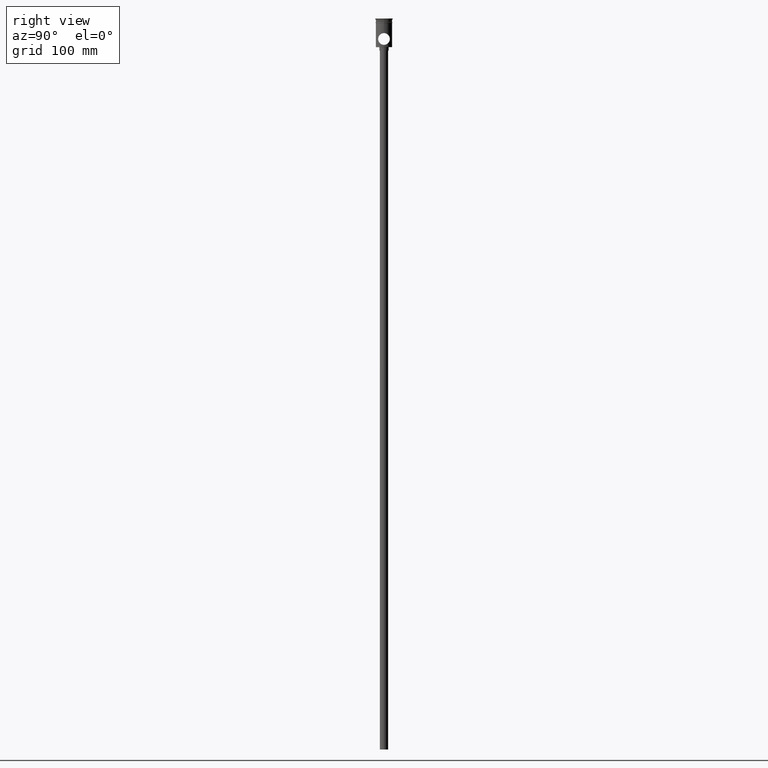
[diagram: clean part render]
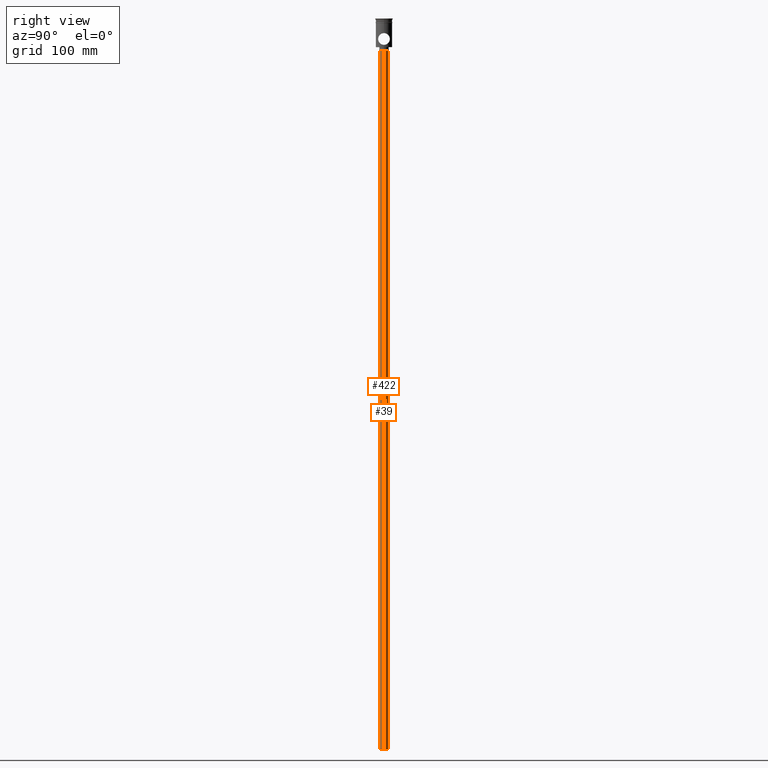
[diagram: same view with one multi-face feature highlighted, each face labeled with its STEP entity id]
A machine part, right view. The highlighted faces form ONE feature: a constant-radius fillet chain: 2 tangent blend faces with common blend radius 3.5 mm. The faces share edges in the B-rep.
Their STEP definitions:
[1] entity #422 (Cylinder):
#11 = LINE ( 'NONE', #357, #736 ) ;
#175 = CARTESIAN_POINT ( 'NONE',  ( 0.000000000000000000, 0.000000000000000000, -624.5000000000000000 ) ) ;
#277 = CYLINDRICAL_SURFACE ( 'NONE', #421, 3.500000000000000444 ) ;
#297 = VERTEX_POINT ( 'NONE', #910 ) ;
#357 = CARTESIAN_POINT ( 'NONE',  ( -3.500000000000000444, 4.286263797015737088E-16, -624.5000000000000000 ) ) ;
#383 = EDGE_CURVE ( 'NONE', #972, #943, #1089, .T. ) ;
#421 = AXIS2_PLACEMENT_3D ( 'NONE', #741, #1075, #1190 ) ;
#422 = ADVANCED_FACE ( 'NONE', ( #1305 ), #277, .T. ) ;
#427 = CARTESIAN_POINT ( 'NONE',  ( 3.500000000000000444, 0.000000000000000000, -27.50000000000000000 ) ) ;
#468 = EDGE_CURVE ( 'NONE', #297, #1492, #11, .T. ) ;
#507 = ORIENTED_EDGE ( 'NONE', *, *, #587, .F. ) ;
#509 = CARTESIAN_POINT ( 'NONE',  ( 3.500000000000000444, 0.000000000000000000, -624.5000000000000000 ) ) ;
#549 = CARTESIAN_POINT ( 'NONE',  ( 3.500000000000000444, 0.000000000000000000, -624.5000000000000000 ) ) ;
#587 = EDGE_CURVE ( 'NONE', #972, #297, #897, .T. ) ;
#607 = DIRECTION ( 'NONE',  ( 0.000000000000000000, 0.000000000000000000, -1.000000000000000000 ) ) ;
#612 = DIRECTION ( 'NONE',  ( -0.000000000000000000, -0.000000000000000000, 1.000000000000000000 ) ) ;
#627 = DIRECTION ( 'NONE',  ( 0.000000000000000000, 0.000000000000000000, -1.000000000000000000 ) ) ;
#690 = EDGE_CURVE ( 'NONE', #943, #1492, #856, .T. ) ;
#736 = VECTOR ( 'NONE', #612, 1000.000000000000000 ) ;
#741 = CARTESIAN_POINT ( 'NONE',  ( 0.000000000000000000, 0.000000000000000000, -624.5000000000000000 ) ) ;
#807 = AXIS2_PLACEMENT_3D ( 'NONE', #175, #627, #1325 ) ;
#856 = CIRCLE ( 'NONE', #1234, 3.500000000000000444 ) ;
#897 = CIRCLE ( 'NONE', #807, 3.500000000000000444 ) ;
#910 = CARTESIAN_POINT ( 'NONE',  ( -3.500000000000000444, 4.286263797015737088E-16, -624.5000000000000000 ) ) ;
#943 = VERTEX_POINT ( 'NONE', #427 ) ;
#972 = VERTEX_POINT ( 'NONE', #549 ) ;
#1067 = DIRECTION ( 'NONE',  ( -1.000000000000000000, 0.000000000000000000, 0.000000000000000000 ) ) ;
#1072 = ORIENTED_EDGE ( 'NONE', *, *, #690, .T. ) ;
#1075 = DIRECTION ( 'NONE',  ( -0.000000000000000000, -0.000000000000000000, 1.000000000000000000 ) ) ;
#1089 = LINE ( 'NONE', #509, #1117 ) ;
#1117 = VECTOR ( 'NONE', #1421, 1000.000000000000000 ) ;
#1118 = CARTESIAN_POINT ( 'NONE',  ( -3.500000000000000444, 4.286263797015737088E-16, -27.50000000000000000 ) ) ;
#1190 = DIRECTION ( 'NONE',  ( 1.000000000000000000, 0.000000000000000000, 0.000000000000000000 ) ) ;
#1234 = AXIS2_PLACEMENT_3D ( 'NONE', #1389, #607, #1067 ) ;
#1235 = ORIENTED_EDGE ( 'NONE', *, *, #383, .T. ) ;
#1246 = ORIENTED_EDGE ( 'NONE', *, *, #468, .F. ) ;
#1305 = FACE_OUTER_BOUND ( 'NONE', #1337, .T. ) ;
#1325 = DIRECTION ( 'NONE',  ( -1.000000000000000000, 0.000000000000000000, 0.000000000000000000 ) ) ;
#1337 = EDGE_LOOP ( 'NONE', ( #1246, #507, #1235, #1072 ) ) ;
#1389 = CARTESIAN_POINT ( 'NONE',  ( 0.000000000000000000, 0.000000000000000000, -27.50000000000000000 ) ) ;
#1421 = DIRECTION ( 'NONE',  ( -0.000000000000000000, -0.000000000000000000, 1.000000000000000000 ) ) ;
#1492 = VERTEX_POINT ( 'NONE', #1118 ) ;
[2] entity #39 (Cylinder):
#6 = CIRCLE ( 'NONE', #1046, 3.500000000000000444 ) ;
#11 = LINE ( 'NONE', #357, #736 ) ;
#39 = ADVANCED_FACE ( 'NONE', ( #1282 ), #1024, .T. ) ;
#48 = EDGE_CURVE ( 'NONE', #297, #972, #6, .T. ) ;
#297 = VERTEX_POINT ( 'NONE', #910 ) ;
#337 = DIRECTION ( 'NONE',  ( -0.000000000000000000, -0.000000000000000000, 1.000000000000000000 ) ) ;
#342 = DIRECTION ( 'NONE',  ( 0.000000000000000000, 0.000000000000000000, -1.000000000000000000 ) ) ;
#357 = CARTESIAN_POINT ( 'NONE',  ( -3.500000000000000444, 4.286263797015737088E-16, -624.5000000000000000 ) ) ;
#383 = EDGE_CURVE ( 'NONE', #972, #943, #1089, .T. ) ;
#427 = CARTESIAN_POINT ( 'NONE',  ( 3.500000000000000444, 0.000000000000000000, -27.50000000000000000 ) ) ;
#468 = EDGE_CURVE ( 'NONE', #297, #1492, #11, .T. ) ;
#509 = CARTESIAN_POINT ( 'NONE',  ( 3.500000000000000444, 0.000000000000000000, -624.5000000000000000 ) ) ;
#549 = CARTESIAN_POINT ( 'NONE',  ( 3.500000000000000444, 0.000000000000000000, -624.5000000000000000 ) ) ;
#589 = ORIENTED_EDGE ( 'NONE', *, *, #702, .T. ) ;
#612 = DIRECTION ( 'NONE',  ( -0.000000000000000000, -0.000000000000000000, 1.000000000000000000 ) ) ;
#702 = EDGE_CURVE ( 'NONE', #1492, #943, #1428, .T. ) ;
#716 = CARTESIAN_POINT ( 'NONE',  ( 0.000000000000000000, 0.000000000000000000, -624.5000000000000000 ) ) ;
#736 = VECTOR ( 'NONE', #612, 1000.000000000000000 ) ;
#771 = EDGE_LOOP ( 'NONE', ( #1212, #968, #589, #1207 ) ) ;
#818 = DIRECTION ( 'NONE',  ( -1.000000000000000000, 0.000000000000000000, 0.000000000000000000 ) ) ;
#830 = DIRECTION ( 'NONE',  ( 1.000000000000000000, 0.000000000000000000, 0.000000000000000000 ) ) ;
#858 = AXIS2_PLACEMENT_3D ( 'NONE', #716, #337, #830 ) ;
#910 = CARTESIAN_POINT ( 'NONE',  ( -3.500000000000000444, 4.286263797015737088E-16, -624.5000000000000000 ) ) ;
#921 = DIRECTION ( 'NONE',  ( -1.000000000000000000, 0.000000000000000000, 0.000000000000000000 ) ) ;
#934 = DIRECTION ( 'NONE',  ( 0.000000000000000000, 0.000000000000000000, -1.000000000000000000 ) ) ;
#943 = VERTEX_POINT ( 'NONE', #427 ) ;
#964 = CARTESIAN_POINT ( 'NONE',  ( 0.000000000000000000, 0.000000000000000000, -27.50000000000000000 ) ) ;
#968 = ORIENTED_EDGE ( 'NONE', *, *, #468, .T. ) ;
#972 = VERTEX_POINT ( 'NONE', #549 ) ;
#1024 = CYLINDRICAL_SURFACE ( 'NONE', #858, 3.500000000000000444 ) ;
#1046 = AXIS2_PLACEMENT_3D ( 'NONE', #1150, #934, #921 ) ;
#1089 = LINE ( 'NONE', #509, #1117 ) ;
#1117 = VECTOR ( 'NONE', #1421, 1000.000000000000000 ) ;
#1118 = CARTESIAN_POINT ( 'NONE',  ( -3.500000000000000444, 4.286263797015737088E-16, -27.50000000000000000 ) ) ;
#1150 = CARTESIAN_POINT ( 'NONE',  ( 0.000000000000000000, 0.000000000000000000, -624.5000000000000000 ) ) ;
#1207 = ORIENTED_EDGE ( 'NONE', *, *, #383, .F. ) ;
#1212 = ORIENTED_EDGE ( 'NONE', *, *, #48, .F. ) ;
#1282 = FACE_OUTER_BOUND ( 'NONE', #771, .T. ) ;
#1380 = AXIS2_PLACEMENT_3D ( 'NONE', #964, #342, #818 ) ;
#1421 = DIRECTION ( 'NONE',  ( -0.000000000000000000, -0.000000000000000000, 1.000000000000000000 ) ) ;
#1428 = CIRCLE ( 'NONE', #1380, 3.500000000000000444 ) ;
#1492 = VERTEX_POINT ( 'NONE', #1118 ) ;